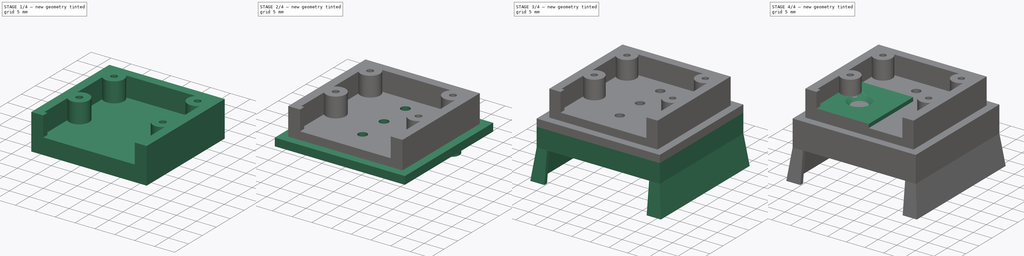
[diagram: build sequence overview — one tinted view per stage of 4, left to right]
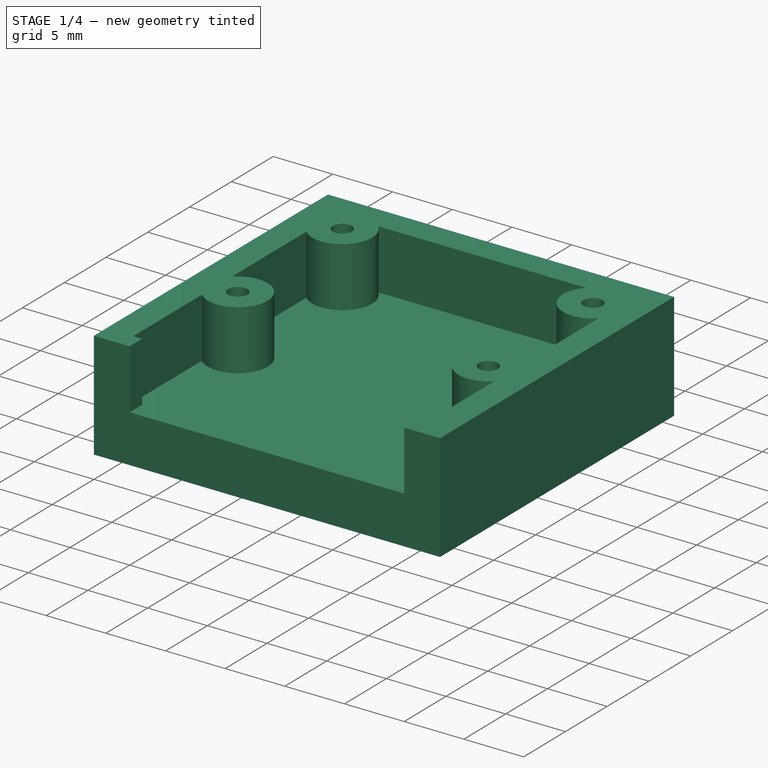
[diagram: stage 1 of 4 — iso view after this stage's code; geometry added in this stage tinted green]
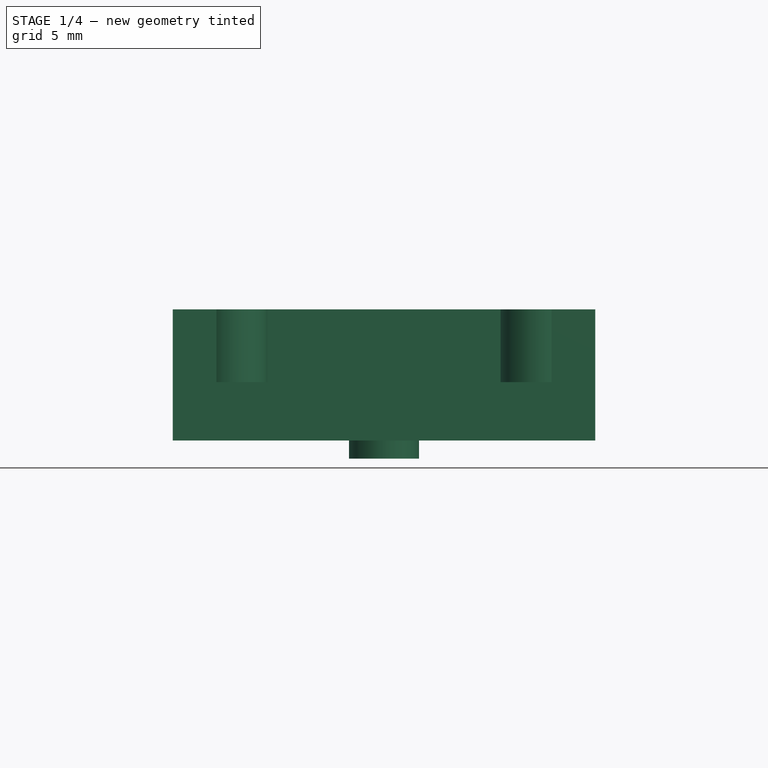
[diagram: stage 1 of 4 — front view after this stage's code; geometry added in this stage tinted green]
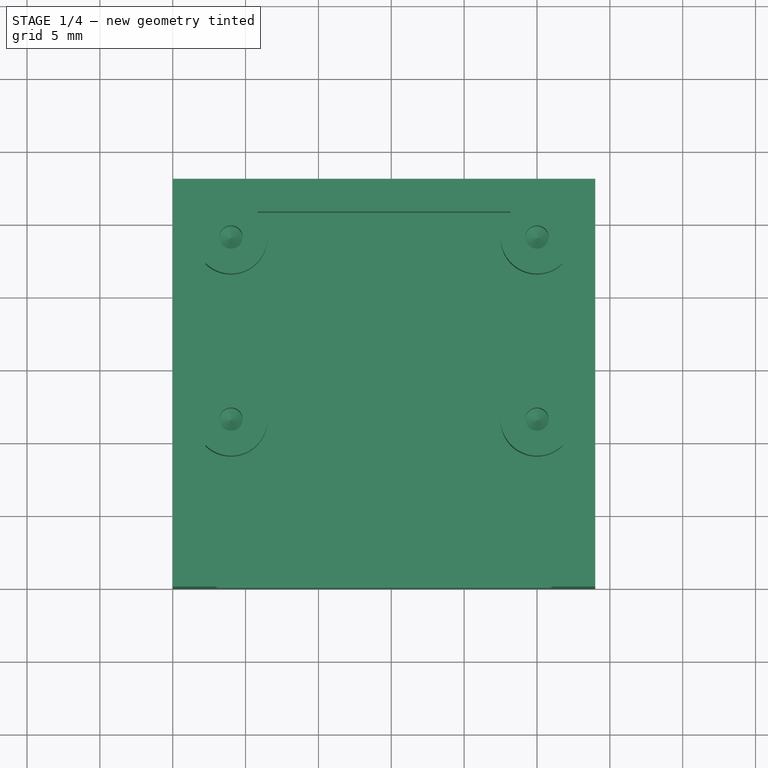
[diagram: stage 1 of 4 — top view after this stage's code; geometry added in this stage tinted green]
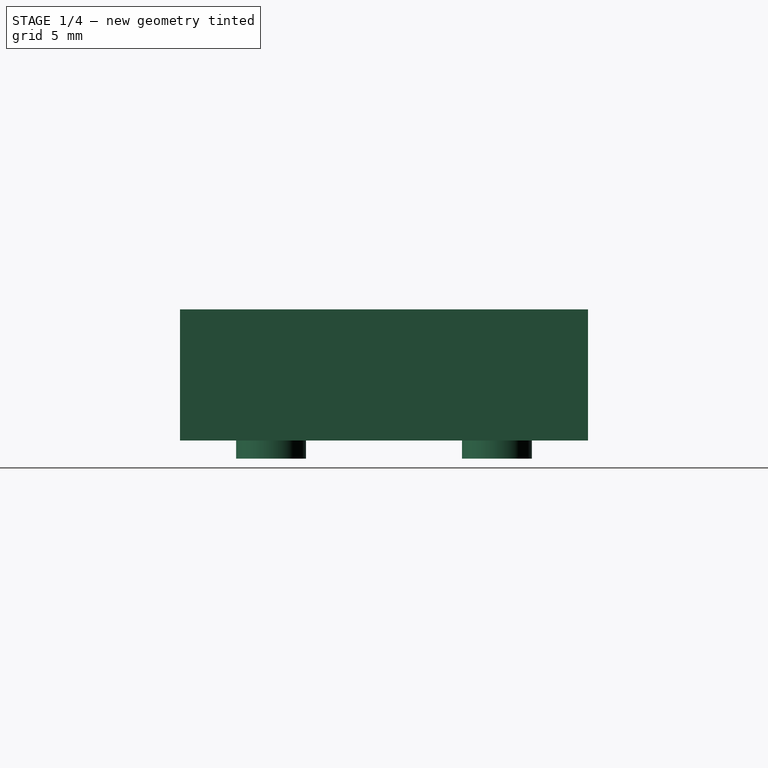
[diagram: stage 1 of 4 — right view after this stage's code; geometry added in this stage tinted green]
FCSTD DOCUMENT  (FreeCAD 1.0R39319 (Git))
Label: Raspi-Cam-holder
License: All rights reserved
LicenseURL: http://en.wikipedia.org/wiki/All_rights_reserved
objects: Sketcher::SketchObject×15, PartDesign::Pad×8, PartDesign::Hole×4, PartDesign::Body×3, PartDesign::AdditiveLoft×1, PartDesign::Chamfer×1
note: 75 computed .brp shape members not serialized (recipe doc carries the construction recipe); baked Part::Feature solids carry a one-line shape summary decoded from their .brp

FEATURE [Sketcher::SketchObject] Sketch
  ArcFitTolerance = 0
  AttachmentSupport = -> [XY_Plane]
  FullyConstrained = false
  MakeInternals = false
  MapMode = 5
  sketch-geometry (8):
    g0: LineSegment StartX=0 StartY=0 StartZ=0 EndX=29 EndY=0 EndZ=0
    g1: LineSegment StartX=29 StartY=0 StartZ=0 EndX=29 EndY=28 EndZ=0
    g2: LineSegment StartX=29 StartY=28 StartZ=0 EndX=0 EndY=28 EndZ=0
    g3: LineSegment StartX=0 StartY=28 StartZ=0 EndX=0 EndY=0 EndZ=0
    g4: LineSegment [constr] StartX=1.9239 StartY=1.73272 StartZ=0 EndX=27.4177 EndY=1.73272 EndZ=0
    g5: LineSegment [constr] StartX=27.4177 StartY=1.73272 StartZ=0 EndX=27.4177 EndY=26.1643 EndZ=0
    g6: LineSegment [constr] StartX=27.4177 StartY=26.1643 StartZ=0 EndX=1.9239 EndY=26.1643 EndZ=0
    g7: LineSegment [constr] StartX=1.9239 StartY=26.1643 StartZ=0 EndX=1.9239 EndY=1.73272 EndZ=0
  constraints (19):
    c: Coincident(g0,g1)
    c: Coincident(g1,g2)
    c: Coincident(g2,g3)
    c: Coincident(g3,g0)
    c: Horizontal(g0)
    c: Horizontal(g2)
    c: Vertical(g1)
    c: Vertical(g3)
    c: Coincident(g0,g-1)
    c: Distance(g2) = 29  'w'
    c: Distance(g1) = 28  'h'
    c: Coincident(g4,g5)
    c: Coincident(g5,g6)
    c: Coincident(g6,g7)
    c: Coincident(g7,g4)
    c: Horizontal(g4)
    c: Horizontal(g6)
    c: Vertical(g5)
    c: Vertical(g7)
FEATURE [PartDesign::Pad] Pad
  Direction = (0,0,1)
  Length = 4
  Length2 = 100
  Profile = -> Sketch
  Suppressed = false
  Type = 0
FEATURE [Sketcher::SketchObject] Sketch001
  ArcFitTolerance = 0
  AttachmentSupport = -> [Pad]
  ExternalGeometry = -> [Pad]
  FullyConstrained = true
  MakeInternals = false
  MapMode = 5
  Placement = pos=(0,0,4) rot=(0,0,1;0rad)
  expr: Constraints[46] = 2 + 2
  sketch-geometry (25):
    g0: LineSegment StartX=0 StartY=28 StartZ=0 EndX=29 EndY=28 EndZ=0
    g1: LineSegment StartX=29 StartY=28 StartZ=0 EndX=29 EndY=0 EndZ=0
    g2: LineSegment StartX=0 StartY=0 StartZ=0 EndX=0 EndY=28 EndZ=0
    g3: ArcOfCircle CenterX=4 CenterY=24 CenterZ=0 NormalX=0 NormalY=0 NormalZ=1 AngleXU=0 Radius=2.5 StartAngle=3.93699 EndAngle=7.05858
    g4: ArcOfCircle CenterX=25 CenterY=24 CenterZ=0 NormalX=0 NormalY=0 NormalZ=1 AngleXU=0 Radius=2.5 StartAngle=2.3662 EndAngle=5.48779
    g5: ArcOfCircle CenterX=25 CenterY=11.5 CenterZ=0 NormalX=0 NormalY=0 NormalZ=1 AngleXU=0 Radius=2.5 StartAngle=0.795399 EndAngle=5.48779
    g6: ArcOfCircle CenterX=4 CenterY=11.5 CenterZ=0 NormalX=0 NormalY=0 NormalZ=1 AngleXU=0 Radius=2.5 StartAngle=3.93699 EndAngle=8.62938
    g7: LineSegment StartX=2.25 StartY=13.2854 StartZ=0 EndX=2.25 EndY=22.2146 EndZ=0
    g8: LineSegment StartX=5.78536 StartY=25.75 StartZ=0 EndX=23.2146 EndY=25.75 EndZ=0
    g9: LineSegment StartX=26.75 StartY=13.2854 StartZ=0 EndX=26.75 EndY=22.2146 EndZ=0
    g10: LineSegment StartX=26.75 StartY=9.71464 StartZ=0 EndX=26.75 EndY=1.5 EndZ=0
    g11: LineSegment StartX=29 StartY=0 StartZ=0 EndX=26 EndY=0 EndZ=0
    g12: LineSegment StartX=26.75 StartY=1.5 StartZ=0 EndX=26 EndY=1.5 EndZ=0
    g13: LineSegment StartX=26 StartY=1.5 StartZ=0 EndX=26 EndY=0 EndZ=0
    g14: LineSegment StartX=2.25 StartY=9.71464 StartZ=0 EndX=2.25 EndY=1.5 EndZ=0
    g15: LineSegment StartX=2.25 StartY=1.5 StartZ=0 EndX=3 EndY=1.5 EndZ=0
    g16: LineSegment StartX=0 StartY=0 StartZ=0 EndX=3 EndY=0 EndZ=0
    g17: LineSegment StartX=3 StartY=0 StartZ=0 EndX=3 EndY=1.5 EndZ=0
    g18: LineSegment [constr] StartX=26 StartY=1.5 StartZ=0 EndX=3 EndY=1.5 EndZ=0
    g19: LineSegment [constr] StartX=2.25 StartY=9.71464 StartZ=0 EndX=2.25 EndY=13.2854 EndZ=0
    g20: LineSegment [constr] StartX=26.75 StartY=9.71464 StartZ=0 EndX=26.75 EndY=13.2854 EndZ=0
    g21: LineSegment [constr] StartX=25 StartY=11.5 StartZ=0 EndX=4 EndY=11.5 EndZ=0
    g22: LineSegment [constr] StartX=25 StartY=11.5 StartZ=0 EndX=25 EndY=24 EndZ=0
    g23: LineSegment [constr] StartX=25 StartY=24 StartZ=0 EndX=4 EndY=24 EndZ=0
    g24: LineSegment [constr] StartX=4 StartY=11.5 StartZ=0 EndX=4 EndY=24 EndZ=0
  constraints (68):
    c: Coincident(g0,g-5)
    c: Coincident(g0,g-4)
    c: Coincident(g1,g0)
    c: Coincident(g1,g-6)
    c: Coincident(g2,g0)
    c: Coincident(g7,g6)
    c: Coincident(g7,g3)
    c: Vertical(g7)
    c: Coincident(g8,g3)
    c: Coincident(g8,g4)
    c: Horizontal(g8)
    c: Coincident(g9,g5)
    c: Coincident(g9,g4)
    c: Vertical(g9)
    c: Coincident(g10,g5)
    c: Vertical(g10)
    c: PointOnObject(g11,g-6)
    c: Coincident(g12,g10)
    c: Horizontal(g12)
    c: Coincident(g13,g12)
    c: Coincident(g13,g11)
    c: Vertical(g13)
    c: Coincident(g14,g6)
    c: Vertical(g14)
    c: Coincident(g15,g14)
    c: Horizontal(g15)
    c: Coincident(g16,g2)
    c: PointOnObject(g16,g-6)
    c: Coincident(g17,g16)
    c: Coincident(g17,g15)
    c: Vertical(g17)
    c: Distance(g4,g0) = 2.25  'ws'
    c: Distance(g5,g1) = 2.25
    c: Coincident(g18,g12)
    c: Coincident(g18,g15)
    c: Horizontal(g18)
    c: Distance(g2,g18) = 1.5
    c: Coincident(g19,g6)
    c: Coincident(g19,g6)
    c: Vertical(g19)
    c: Coincident(g20,g5)
    c: Coincident(g20,g5)
    c: Vertical(g20)
    c: Coincident(g21,g5)
    c: Coincident(g21,g6)
    c: Horizontal(g21)
    c: Distance(g5,g1) = 4
    c: Coincident(g22,g5)
    c: Coincident(g22,g4)
    c: Vertical(g22)
    c: Coincident(g23,g4)
    c: Coincident(g23,g3)
    c: Horizontal(g23)
    c: Coincident(g24,g6)
    c: Coincident(g24,g3)
    c: Vertical(g24)
    c: Distance(g6,g2) = 2.25
    c: Coincident(g2,g-1)
    c: Distance(g6,g2) = 4
    c: Equal(g4,g5)
    c: Equal(g5,g6)
    c: Equal(g6,g3)
    c: Distance(g3,g0) = 4
    c: Radius(g5) = 2.5
    c: Distance(g24) = 12.5
    c: Equal(g11,g16)
    c: Distance(g11) = 3
    c: Coincident(g11,g1)
FEATURE [PartDesign::Pad] Pad001
  BaseFeature = -> Pad
  Direction = (0,0,1)
  Length = 5
  Length2 = 100
  Profile = -> Sketch001
  Suppressed = false
  Type = 0
FEATURE [Sketcher::SketchObject] Sketch002
  ArcFitTolerance = 0
  AttachmentSupport = -> [Pad001]
  ExternalGeometry = -> [Pad001]
  FullyConstrained = false
  MakeInternals = false
  MapMode = 5
  Placement = pos=(0,0,9) rot=(0,0,1;0rad)
  sketch-geometry (4):
    g0: Circle CenterX=25 CenterY=24 CenterZ=0 NormalX=0 NormalY=0 NormalZ=1 AngleXU=0 Radius=0.890291
    g1: Circle CenterX=25 CenterY=11.5 CenterZ=0 NormalX=0 NormalY=0 NormalZ=1 AngleXU=0 Radius=0.96993
    g2: Circle CenterX=4 CenterY=11.5 CenterZ=0 NormalX=0 NormalY=0 NormalZ=1 AngleXU=0 Radius=1.01386
    g3: Circle CenterX=4 CenterY=24 CenterZ=0 NormalX=0 NormalY=0 NormalZ=1 AngleXU=0 Radius=0.926624
  constraints (4):
    c: Coincident(g0,g-3)
    c: Coincident(g1,g-4)
    c: Coincident(g2,g-5)
    c: Coincident(g3,g-6)
FEATURE [PartDesign::Hole] Hole
  BaseFeature = -> Pad001
  CustomThreadClearance = 0
  Depth = 4
  DepthType = 0
  Diameter = 1.6
  DrillForDepth = false
  DrillPoint = 1
  DrillPointAngle = 118
  HoleCutCountersinkAngle = 90
  HoleCutCustomValues = false
  HoleCutDepth = 0
  HoleCutDiameter = 6.1
  HoleCutType = 0
  ModelThread = false
  Profile = -> Sketch002
  Suppressed = false
  Tapered = false
  TaperedAngle = 90
  ThreadClass = 0
  ThreadDepth = 4
  ThreadDepthType = 0
  ThreadDirection = 0
  ThreadFit = 0
  ThreadSize = 6
  ThreadType = 1
  Threaded = true
  UseCustomThreadClearance = false
FEATURE [Sketcher::SketchObject] Sketch003
  ArcFitTolerance = 0
  AttachmentSupport = -> [Hole]
  ExternalGeometry = -> [Hole]
  FullyConstrained = false
  MakeInternals = false
  MapMode = 5
  Placement = pos=(0,0,0) rot=(1,0,0;3.14159rad)
  expr: Constraints[12] = 15.5 / 2
  expr: Constraints[13] = 15.5 / 2
  sketch-geometry (6):
    g0: LineSegment [constr] StartX=0 StartY=0 StartZ=0 EndX=29 EndY=-28 EndZ=0
    g1: LineSegment [constr] StartX=29 StartY=0 StartZ=0 EndX=0 EndY=-28 EndZ=0
    g2: LineSegment [constr] StartX=14.5 StartY=-28.0755 StartZ=0 EndX=14.5 EndY=0 EndZ=0
    g3: Circle CenterX=14.5 CenterY=-6.25 CenterZ=0 NormalX=0 NormalY=0 NormalZ=1 AngleXU=0 Radius=2.4
    g4: Circle CenterX=14.5 CenterY=-21.75 CenterZ=0 NormalX=0 NormalY=0 NormalZ=1 AngleXU=0 Radius=2.4
    g5: GeomPoint [constr] X=14.5 Y=-14 Z=0
  constraints (14):
    c: Coincident(g0,g-1)
    c: Coincident(g0,g-3)
    c: Coincident(g1,g-3)
    c: Coincident(g1,g-4)
    c: PointOnObject(g2,g-1)
    c: Vertical(g2)
    c: PointOnObject(g3,g2)
    c: PointOnObject(g4,g2)
    c: Diameter(g3) = 4.8
    c: Equal(g4,g3)
    c: Symmetric(g0,g0,g5)
    c: PointOnObject(g5,g2)
    c: Distance(g5,g3) = 7.75
    c: Distance(g4,g5) = 7.75
FEATURE [PartDesign::Pad] Pad002
  BaseFeature = -> Hole
  Direction = (0,0,-1)
  Length = 1.25
  Length2 = 100
  Profile = -> Sketch003
  ReferenceAxis = -> Sketch003 [N_Axis]
  Suppressed = false
  Type = 0
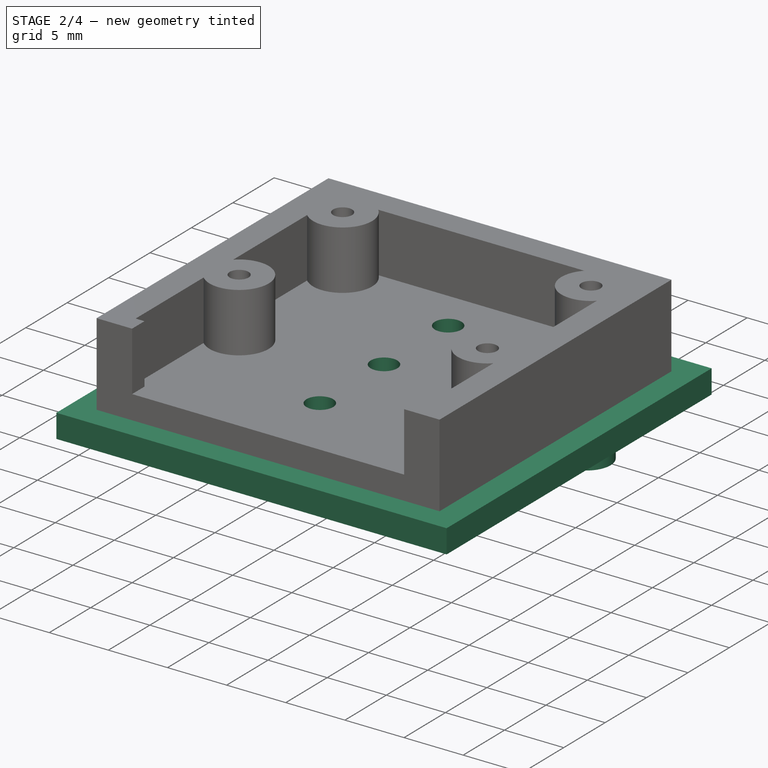
[diagram: stage 2 of 4 — iso view after this stage's code; geometry added in this stage tinted green]
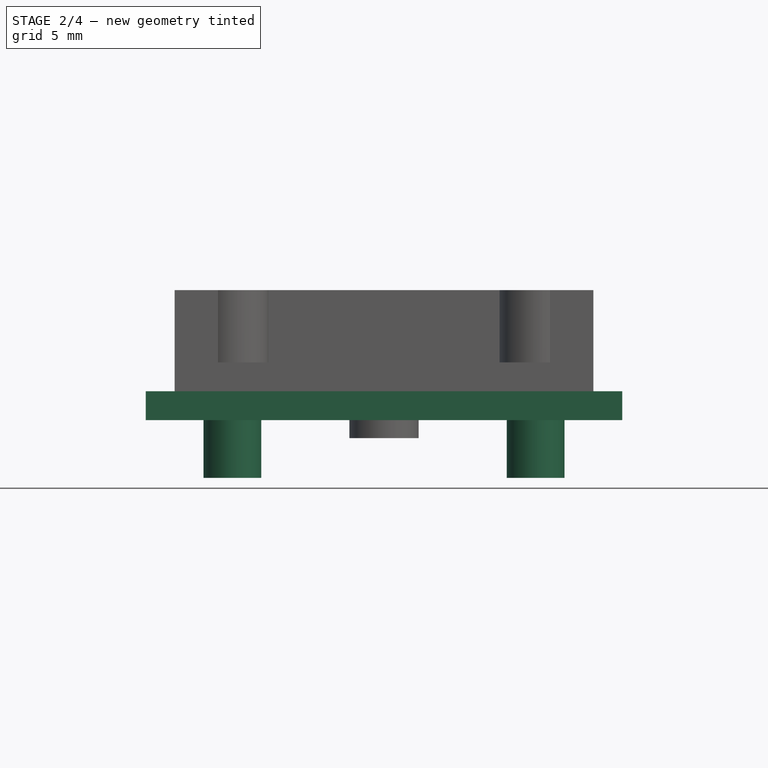
[diagram: stage 2 of 4 — front view after this stage's code; geometry added in this stage tinted green]
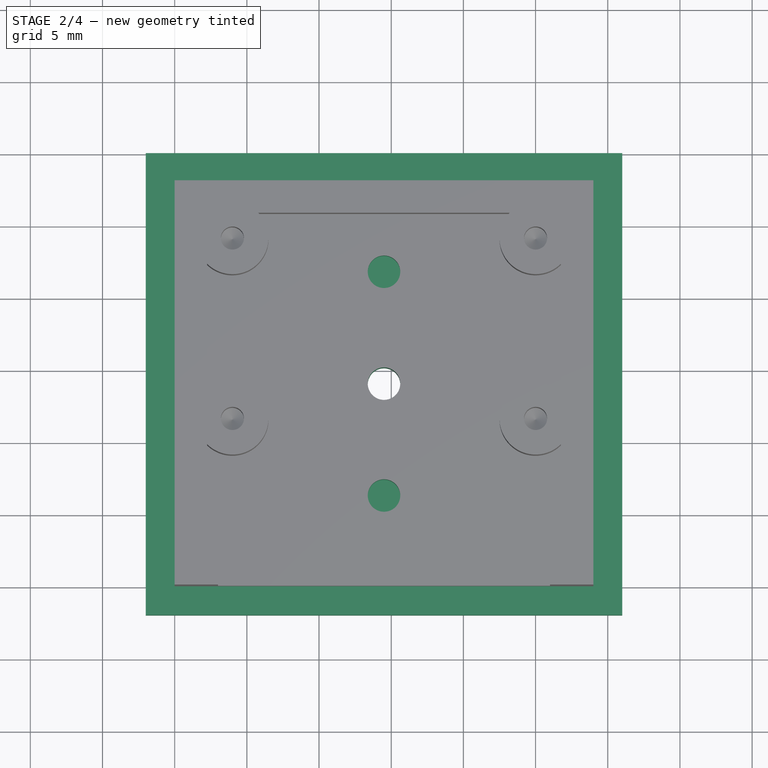
[diagram: stage 2 of 4 — top view after this stage's code; geometry added in this stage tinted green]
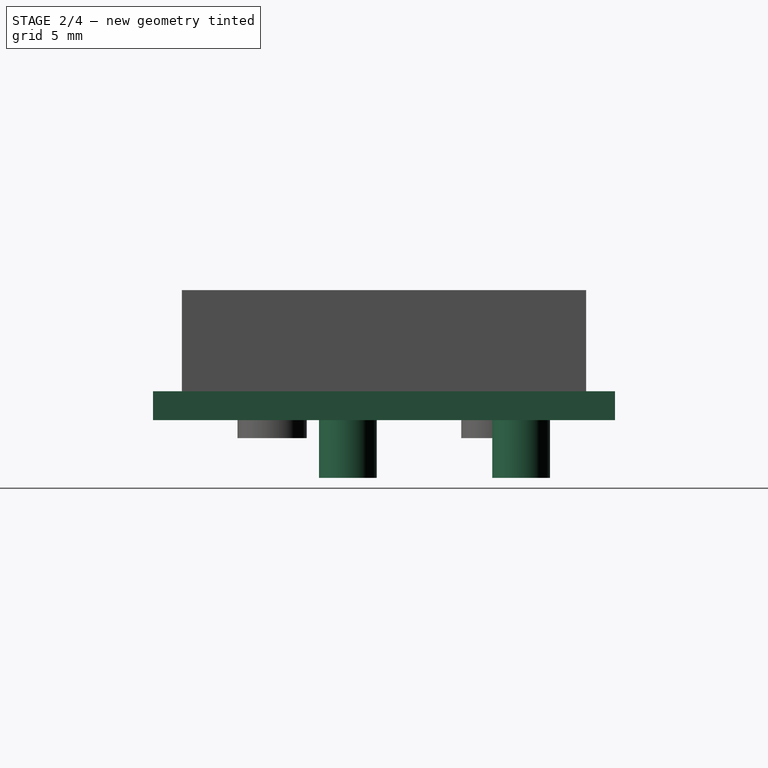
[diagram: stage 2 of 4 — right view after this stage's code; geometry added in this stage tinted green]
FEATURE [PartDesign::Body] Body001  label="Counter_ding"
  AllowCompound = false
  Group = -> [Sketch005,Pad003,Sketch006,Sketch007,Hole002,Sketch008,Pad004]
  Origin = -> Origin001
  Placement = pos=(23,5.5,-4) rot=(0,1,0;3.14159rad)
  Tip = -> Pad004
FEATURE [Sketcher::SketchObject] Sketch009
  ArcFitTolerance = 0
  AttachmentSupport = -> [XY_Plane002]
  FullyConstrained = true
  MakeInternals = false
  MapMode = 5
  sketch-geometry (10):
    g0: LineSegment StartX=-2 StartY=-2 StartZ=0 EndX=31 EndY=-2 EndZ=0
    g1: LineSegment StartX=31 StartY=-2 StartZ=0 EndX=31 EndY=30 EndZ=0
    g2: LineSegment StartX=31 StartY=30 StartZ=0 EndX=-2 EndY=30 EndZ=0
    g3: LineSegment StartX=-2 StartY=30 StartZ=0 EndX=-2 EndY=-2 EndZ=0
    g4: LineSegment [constr] StartX=0 StartY=28 StartZ=0 EndX=29 EndY=28 EndZ=0
    g5: LineSegment [constr] StartX=29 StartY=28 StartZ=0 EndX=29 EndY=0 EndZ=0
    g6: LineSegment [constr] StartX=29 StartY=0 StartZ=0 EndX=0 EndY=0 EndZ=0
    g7: LineSegment [constr] StartX=0 StartY=0 StartZ=0 EndX=0 EndY=28 EndZ=0
    g8: Circle CenterX=14.5 CenterY=11.5 CenterZ=0 NormalX=0 NormalY=0 NormalZ=1 AngleXU=0 Radius=3.75
    g9: LineSegment [constr] StartX=29 StartY=11.5 StartZ=0 EndX=0 EndY=11.5 EndZ=0
  constraints (30):
    c: Coincident(g0,g1)
    c: Coincident(g1,g2)
    c: Coincident(g2,g3)
    c: Coincident(g3,g0)
    c: Horizontal(g0)
    c: Horizontal(g2)
    c: Vertical(g1)
    c: Vertical(g3)
    c: Coincident(g4,g5)
    c: Coincident(g5,g6)
    c: Coincident(g6,g7)
    c: Coincident(g7,g4)
    c: Horizontal(g4)
    c: Horizontal(g6)
    c: Vertical(g5)
    c: Vertical(g7)
    c: PointOnObject(g4,g-2)
    c: PointOnObject(g5,g-1)
    c: Distance(g4) = 29
    c: Distance(g5) = 28
    c: DistanceY(g4,g2) = 2
    c: DistanceY(g0,g-1) = 2
    c: DistanceX(g2,g4) = 2
    c: DistanceX(g5,g0) = 2
    c: PointOnObject(g9,g5)
    c: PointOnObject(g9,g7)
    c: Horizontal(g9)
    c: Distance(g-1,g9) = 11.5
    c: Symmetric(g9,g9,g8)
    c: Radius(g8) = 3.75
FEATURE [PartDesign::Pad] Pad005
  Direction = (0,0,1)
  Length = 2
  Length2 = 100
  Profile = -> Sketch009
  Suppressed = false
  Type = 0
FEATURE [Sketcher::SketchObject] Sketch010
  ArcFitTolerance = 0
  AttachmentSupport = -> [Pad005]
  ExternalGeometry = -> [Pad005]
  FullyConstrained = true
  MakeInternals = false
  MapMode = 5
  Placement = pos=(0,0,0) rot=(1,0,0;3.14159rad)
  sketch-geometry (6):
    g0: Circle CenterX=25 CenterY=-23.5 CenterZ=0 NormalX=0 NormalY=0 NormalZ=1 AngleXU=0 Radius=2
    g1: Circle CenterX=4 CenterY=-11.5 CenterZ=0 NormalX=0 NormalY=0 NormalZ=1 AngleXU=0 Radius=2
    g2: LineSegment [constr] StartX=25 StartY=-23.5 StartZ=0 EndX=4 EndY=-23.5 EndZ=0
    g3: LineSegment [constr] StartX=4 StartY=-23.5 StartZ=0 EndX=4 EndY=-11.5 EndZ=0
    g4: LineSegment [constr] StartX=4 StartY=-11.5 StartZ=0 EndX=25 EndY=-11.5 EndZ=0
    g5: LineSegment [constr] StartX=25 StartY=-11.5 StartZ=0 EndX=25 EndY=-23.5 EndZ=0
  constraints (15):
    c: Radius(g1) = 2
    c: Equal(g1,g0)
    c: Coincident(g2,g3)
    c: Coincident(g3,g4)
    c: Coincident(g4,g5)
    c: Coincident(g5,g2)
    c: Horizontal(g2)
    c: Horizontal(g4)
    c: Vertical(g3)
    c: Vertical(g5)
    c: Coincident(g2,g0)
    c: Coincident(g3,g1)
    c: Distance(g4) = 21
    c: Distance(g5) = 12
    c: Symmetric(g1,g4,g-3)
FEATURE [PartDesign::Pad] Pad006
  BaseFeature = -> Pad005
  Direction = (0,0,-1)
  Length = 4
  Length2 = 100
  Profile = -> Sketch010
  Suppressed = false
  Type = 0
FEATURE [PartDesign::Body] Body002  label="Deckel"
  AllowCompound = false
  Group = -> [Sketch009,Pad005,Sketch010,Pad006,Sketch011,Hole003,Sketch012,Pad007,Sketch013,Sketch018,AdditiveLoft,Chamfer]
  Origin = -> Origin002
  Placement = pos=(0,0,32) rot=(0,1,0;0rad)
  Tip = -> Chamfer
FEATURE [Sketcher::SketchObject] Sketch019
  ArcFitTolerance = 1e-06
  AttachmentSupport = -> [Pad002]
  ExternalGeometry = -> [Pad002]
  FullyConstrained = false
  MakeInternals = false
  MapMode = 5
  Placement = pos=(0,0,-1.25) rot=(1,0,0;3.14159rad)
  sketch-geometry (5):
    g0: LineSegment [constr] StartX=0 StartY=0 StartZ=0 EndX=29 EndY=-28 EndZ=0
    g1: LineSegment [constr] StartX=0 StartY=-28 StartZ=0 EndX=29 EndY=0 EndZ=0
    g2: Circle CenterX=14.5 CenterY=-14 CenterZ=0 NormalX=0 NormalY=0 NormalZ=1 AngleXU=0 Radius=1.4285
    g3: Circle CenterX=14.5 CenterY=-6.25 CenterZ=0 NormalX=0 NormalY=0 NormalZ=1 AngleXU=0 Radius=0.9327
    g4: Circle CenterX=14.5 CenterY=-21.75 CenterZ=0 NormalX=0 NormalY=0 NormalZ=1 AngleXU=0 Radius=0.994264
  constraints (7):
    c: Coincident(g0,g-1)
    c: Coincident(g0,g-5)
    c: Coincident(g1,g-6)
    c: Coincident(g1,g-5)
    c: Symmetric(g0,g0,g2)
    c: Coincident(g3,g-3)
    c: Coincident(g4,g-4)
FEATURE [PartDesign::Hole] Hole004
  BaseFeature = -> Pad002
  CustomThreadClearance = 0
  Depth = 84.0199
  DepthType = 1
  Diameter = 2.25
  DrillForDepth = false
  DrillPoint = 1
  DrillPointAngle = 118
  HoleCutCountersinkAngle = 90
  HoleCutCustomValues = false
  HoleCutDepth = 0
  HoleCutDiameter = 6.1
  HoleCutType = 0
  ModelThread = false
  Profile = -> Sketch019
  Refine = true
  Suppressed = false
  Tapered = false
  TaperedAngle = 90
  ThreadClass = 0
  ThreadDepth = 84.0199
  ThreadDepthType = 0
  ThreadDirection = 0
  ThreadFit = 0
  ThreadSize = 0
  ThreadType = 0
  Threaded = false
  UseCustomThreadClearance = false
FEATURE [PartDesign::Body] Body  label="Main_base"
  AllowCompound = false
  Group = -> [Sketch,Pad,Sketch001,Pad001,Sketch002,Hole,Sketch003,Pad002,Sketch019,Hole004]
  Origin = -> Origin
  Tip = -> Hole004
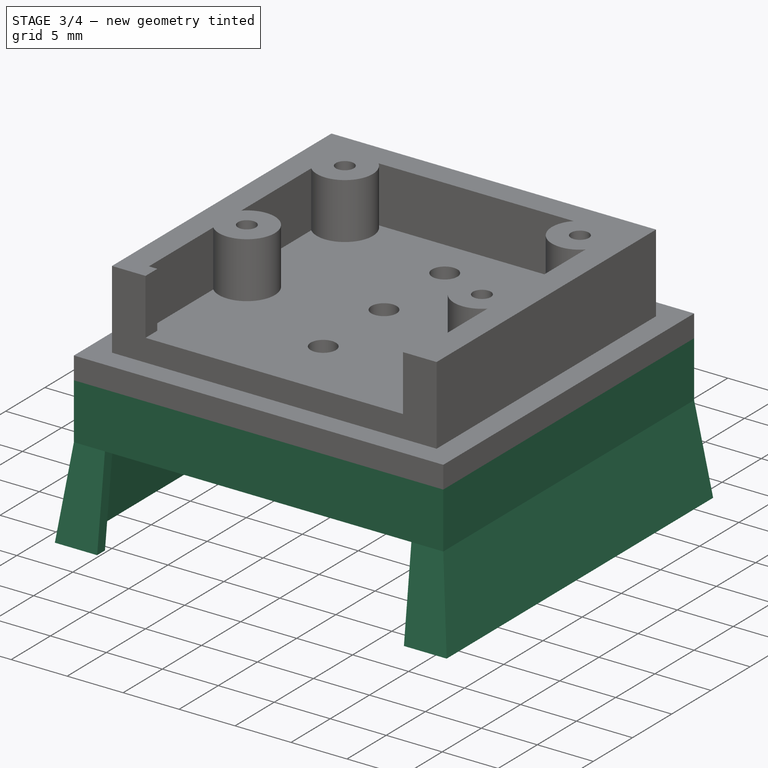
[diagram: stage 3 of 4 — iso view after this stage's code; geometry added in this stage tinted green]
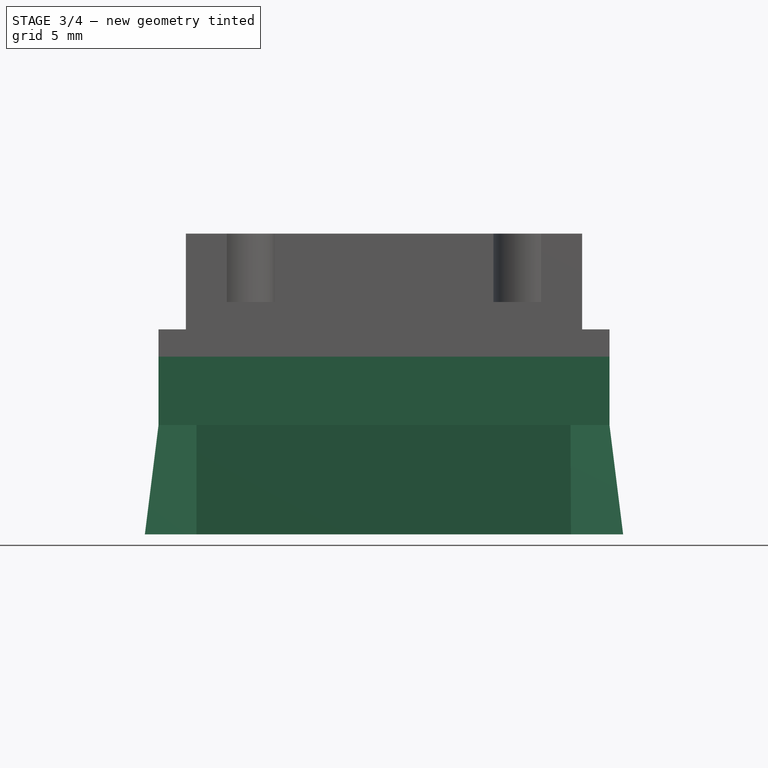
[diagram: stage 3 of 4 — front view after this stage's code; geometry added in this stage tinted green]
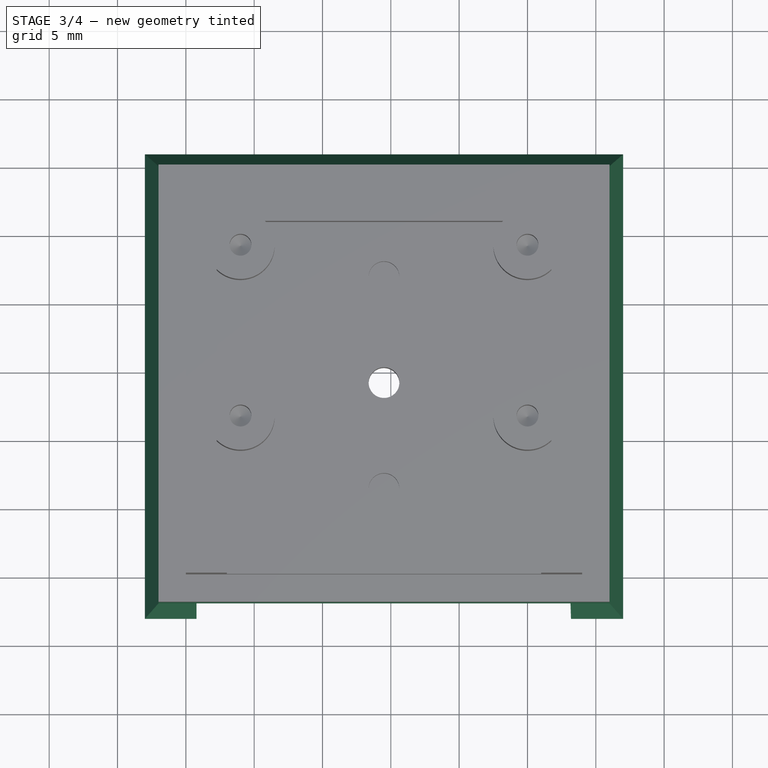
[diagram: stage 3 of 4 — top view after this stage's code; geometry added in this stage tinted green]
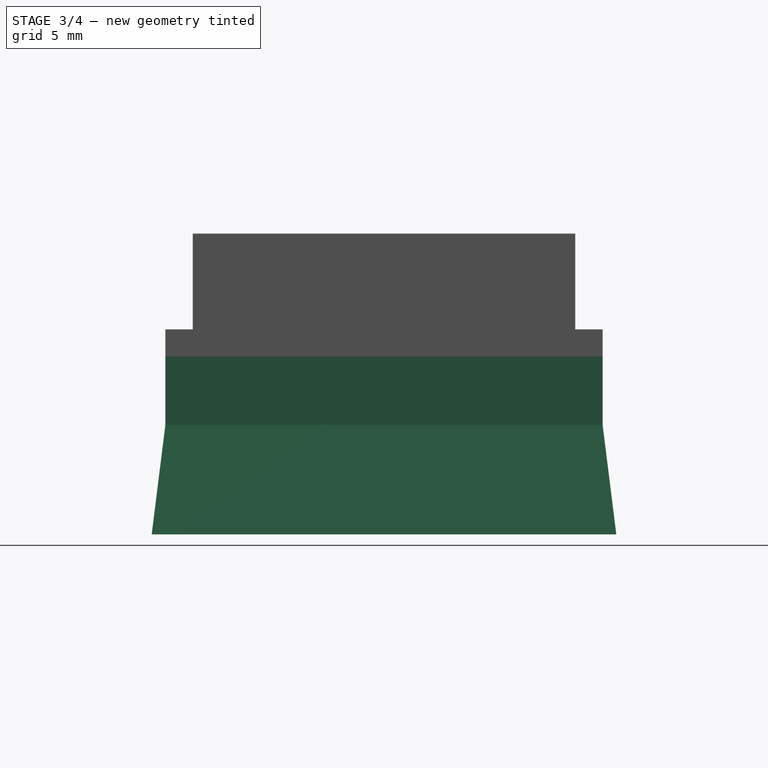
[diagram: stage 3 of 4 — right view after this stage's code; geometry added in this stage tinted green]
FEATURE [Sketcher::SketchObject] Sketch011
  ArcFitTolerance = 0
  AttachmentSupport = -> [Pad006]
  ExternalGeometry = -> [Pad006]
  FullyConstrained = false
  MakeInternals = false
  MapMode = 5
  Placement = pos=(0,0,-4) rot=(1,0,0;3.14159rad)
  sketch-geometry (3):
    g0: GeomPoint [constr] X=25 Y=-23.5 Z=0
    g1: Circle CenterX=25 CenterY=-23.5 CenterZ=0 NormalX=0 NormalY=0 NormalZ=1 AngleXU=0 Radius=0.79125
    g2: Circle CenterX=4 CenterY=-11.5 CenterZ=0 NormalX=0 NormalY=0 NormalZ=1 AngleXU=0 Radius=1.26493
  constraints (3):
    c: Coincident(g0,g-3)
    c: Coincident(g1,g0)
    c: Coincident(g2,g-4)
FEATURE [PartDesign::Hole] Hole003
  BaseFeature = -> Pad006
  CustomThreadClearance = 0
  Depth = 25
  DepthType = 0
  Diameter = 2.5
  DrillForDepth = false
  DrillPoint = 1
  DrillPointAngle = 118
  HoleCutCountersinkAngle = 93
  HoleCutCustomValues = false
  HoleCutDepth = 0
  HoleCutDiameter = 5.9
  HoleCutType = 0
  ModelThread = false
  Profile = -> Sketch011
  Suppressed = false
  Tapered = false
  TaperedAngle = 90
  ThreadClass = 0
  ThreadDepth = 23.5
  ThreadDepthType = 0
  ThreadDirection = 0
  ThreadFit = 0
  ThreadSize = 0
  ThreadType = 0
  Threaded = false
  UseCustomThreadClearance = false
FEATURE [Sketcher::SketchObject] Sketch012
  ArcFitTolerance = 0
  AttachmentSupport = -> [Hole003]
  ExternalGeometry = -> [Hole003]
  FullyConstrained = true
  MakeInternals = false
  MapMode = 5
  Placement = pos=(0,0,0) rot=(1,0,0;3.14159rad)
  sketch-geometry (8):
    g0: LineSegment StartX=-2 StartY=2 StartZ=0 EndX=31 EndY=2 EndZ=0
    g1: LineSegment StartX=31 StartY=2 StartZ=0 EndX=31 EndY=-30 EndZ=0
    g2: LineSegment StartX=31 StartY=-30 StartZ=0 EndX=-2 EndY=-30 EndZ=0
    g3: LineSegment StartX=-2 StartY=-30 StartZ=0 EndX=-2 EndY=2 EndZ=0
    g4: LineSegment StartX=29 StartY=-28 StartZ=0 EndX=0 EndY=-28 EndZ=0
    g5: LineSegment StartX=0 StartY=-28 StartZ=0 EndX=0 EndY=0 EndZ=0
    g6: LineSegment StartX=0 StartY=0 StartZ=0 EndX=29 EndY=0 EndZ=0
    g7: LineSegment StartX=29 StartY=0 StartZ=0 EndX=29 EndY=-28 EndZ=0
  constraints (21):
    c: Coincident(g0,g1)
    c: Coincident(g1,g2)
    c: Coincident(g2,g3)
    c: Coincident(g3,g0)
    c: Horizontal(g0)
    c: Horizontal(g2)
    c: Vertical(g1)
    c: Vertical(g3)
    c: Coincident(g0,g-3)
    c: Coincident(g1,g-4)
    c: Coincident(g4,g5)
    c: Coincident(g5,g6)
    c: Coincident(g6,g7)
    c: Coincident(g7,g4)
    c: Horizontal(g4)
    c: Horizontal(g6)
    c: Vertical(g5)
    c: Vertical(g7)
    c: Coincident(g5,g-1)
    c: DistanceY(g1,g4) = 2
    c: DistanceX(g4,g1) = 2
FEATURE [PartDesign::Pad] Pad007
  BaseFeature = -> Hole003
  Direction = (0,0,-1)
  Length = 5
  Length2 = 100
  Profile = -> Sketch012
  Suppressed = false
  Type = 0
FEATURE [Sketcher::SketchObject] Sketch013
  ArcFitTolerance = 0
  AttachmentSupport = -> [Pad007]
  ExternalGeometry = -> [Pad007]
  FullyConstrained = false
  MakeInternals = false
  MapMode = 5
  Placement = pos=(0,0,-5) rot=(1,0,0;3.14159rad)
  sketch-geometry (13):
    g0: LineSegment StartX=-2 StartY=2 StartZ=0 EndX=-2 EndY=-30 EndZ=0
    g1: LineSegment StartX=31 StartY=-30 StartZ=0 EndX=31 EndY=2 EndZ=0
    g2: LineSegment StartX=30 StartY=-29 StartZ=0 EndX=30 EndY=1 EndZ=0
    g3: LineSegment StartX=-1 StartY=1 StartZ=0 EndX=-1 EndY=-29 EndZ=0
    g4: LineSegment StartX=30 StartY=-29 StartZ=0 EndX=-1 EndY=-29 EndZ=0
    g5: LineSegment StartX=31 StartY=-30 StartZ=0 EndX=-2 EndY=-30 EndZ=0
    g6: LineSegment StartX=-1 StartY=1 StartZ=0 EndX=0.774787 EndY=1 EndZ=0
    g7: LineSegment StartX=0.774787 StartY=1 StartZ=0 EndX=0.774787 EndY=2 EndZ=0
    g8: LineSegment StartX=0.774787 StartY=2 StartZ=0 EndX=-2 EndY=2 EndZ=0
    g9: LineSegment StartX=30 StartY=1 StartZ=0 EndX=28.1478 EndY=1 EndZ=0
    g10: LineSegment StartX=28.1478 StartY=1 StartZ=0 EndX=28.1478 EndY=2 EndZ=0
    g11: LineSegment StartX=28.1478 StartY=2 StartZ=0 EndX=31 EndY=2 EndZ=0
    g12: LineSegment [constr] StartX=28.1478 StartY=1 StartZ=0 EndX=0.774787 EndY=1 EndZ=0
  constraints (34):
    c: Vertical(g0)
    c: Vertical(g1)
    c: Coincident(g0,g-4)
    c: Vertical(g2)
    c: Vertical(g3)
    c: DistanceX(g2,g1) = 1
    c: DistanceX(g0,g3) = 1
    c: DistanceY(g2,g1) = 1
    c: DistanceY(g0,g3) = 1
    c: Coincident(g4,g2)
    c: Horizontal(g4)
    c: Coincident(g4,g3)
    c: Coincident(g5,g1)
    c: Coincident(g5,g0)
    c: Horizontal(g5)
    c: Coincident(g6,g3)
    c: Coincident(g7,g6)
    c: PointOnObject(g7,g-3)
    c: Vertical(g7)
    c: Coincident(g8,g0)
    c: Horizontal(g8)
    c: Coincident(g9,g2)
    c: Horizontal(g9)
    c: Coincident(g10,g9)
    c: PointOnObject(g10,g-3)
    c: Coincident(g11,g10)
    c: Coincident(g11,g1)
    c: Horizontal(g11)
    c: Vertical(g10)
    c: Coincident(g8,g7)
    c: Horizontal(g6)
    c: Coincident(g12,g9)
    c: Coincident(g12,g6)
    c: Horizontal(g12)
FEATURE [Sketcher::SketchObject] Sketch018
  ArcFitTolerance = 0
  FullyConstrained = false
  MakeInternals = false
  MapMode = 5
  Placement = pos=(0,0,-13) rot=(1,0,0;3.14159rad)
  sketch-geometry (14):
    g0: LineSegment StartX=-3 StartY=3 StartZ=0 EndX=-3 EndY=-31 EndZ=0
    g1: LineSegment StartX=32 StartY=-31 StartZ=0 EndX=32 EndY=3 EndZ=0
    g2: LineSegment StartX=31 StartY=-30 StartZ=0 EndX=31 EndY=2 EndZ=0
    g3: LineSegment StartX=-2 StartY=2 StartZ=0 EndX=-2 EndY=-30 EndZ=0
    g4: LineSegment StartX=31 StartY=-30 StartZ=0 EndX=-2 EndY=-30 EndZ=0
    g5: LineSegment StartX=32 StartY=-31 StartZ=0 EndX=-3 EndY=-31 EndZ=0
    g6: LineSegment StartX=-2 StartY=2 StartZ=0 EndX=0.774787 EndY=2 EndZ=0
    g7: LineSegment StartX=0.774787 StartY=2 StartZ=0 EndX=0.774787 EndY=3 EndZ=0
    g8: LineSegment StartX=0.774787 StartY=3 StartZ=0 EndX=-3 EndY=3 EndZ=0
    g9: LineSegment StartX=31 StartY=2 StartZ=0 EndX=28.183 EndY=2 EndZ=0
    g10: LineSegment StartX=28.183 StartY=2 StartZ=0 EndX=28.183 EndY=3 EndZ=0
    g11: LineSegment StartX=28.183 StartY=3 StartZ=0 EndX=32 EndY=3 EndZ=0
    g12: LineSegment [constr] StartX=28.183 StartY=2 StartZ=0 EndX=0.774787 EndY=2 EndZ=0
    g13: LineSegment [constr] StartX=28.183 StartY=3 StartZ=0 EndX=0.774787 EndY=3 EndZ=0
  constraints (32):
    c: Vertical(g0)
    c: Vertical(g1)
    c: Vertical(g3)
    c: DistanceX(g2,g1) = 1
    c: DistanceX(g0,g3) = 1
    c: DistanceY(g2,g1) = 1
    c: DistanceY(g0,g3) = 1
    c: Coincident(g4,g2)
    c: Horizontal(g4)
    c: Coincident(g4,g3)
    c: Coincident(g5,g1)
    c: Coincident(g5,g0)
    c: Horizontal(g5)
    c: Coincident(g6,g3)
    c: Coincident(g7,g6)
    c: Vertical(g7)
    c: Coincident(g8,g0)
    c: Horizontal(g8)
    c: Coincident(g9,g2)
    c: Horizontal(g9)
    c: Coincident(g10,g9)
    c: Coincident(g11,g10)
    c: Coincident(g11,g1)
    c: Horizontal(g11)
    c: Vertical(g10)
    c: Coincident(g8,g7)
    c: Horizontal(g6)
    c: Coincident(g12,g9)
    c: Coincident(g12,g6)
    c: Coincident(g13,g10)
    c: Coincident(g13,g7)
    c: Horizontal(g13)
FEATURE [PartDesign::AdditiveLoft] AdditiveLoft
  BaseFeature = -> Pad007
  Closed = false
  Profile = -> Sketch013
  Ruled = false
  Sections = -> [Sketch018]
  Suppressed = false
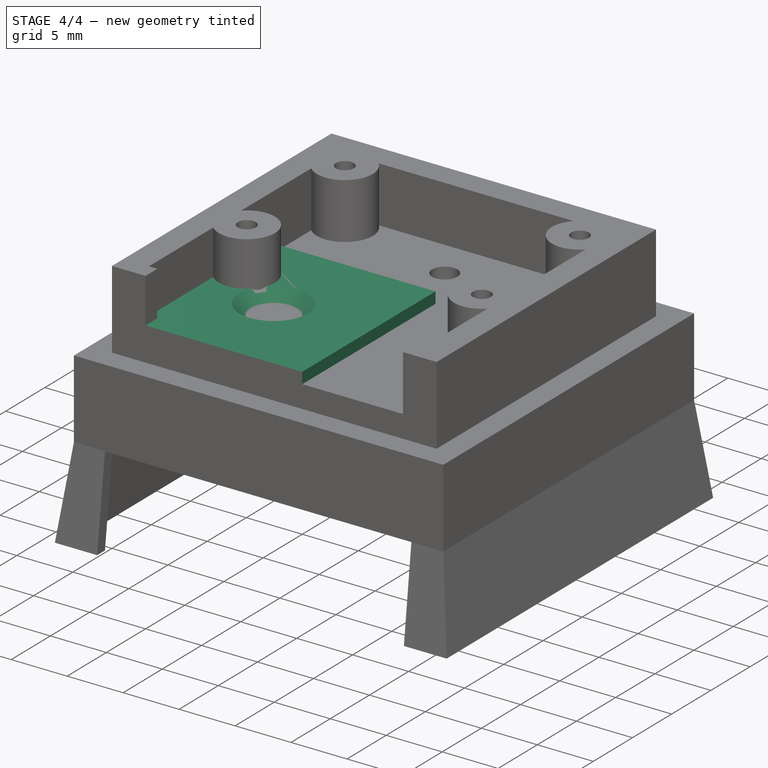
[diagram: stage 4 of 4 — iso view after this stage's code; geometry added in this stage tinted green]
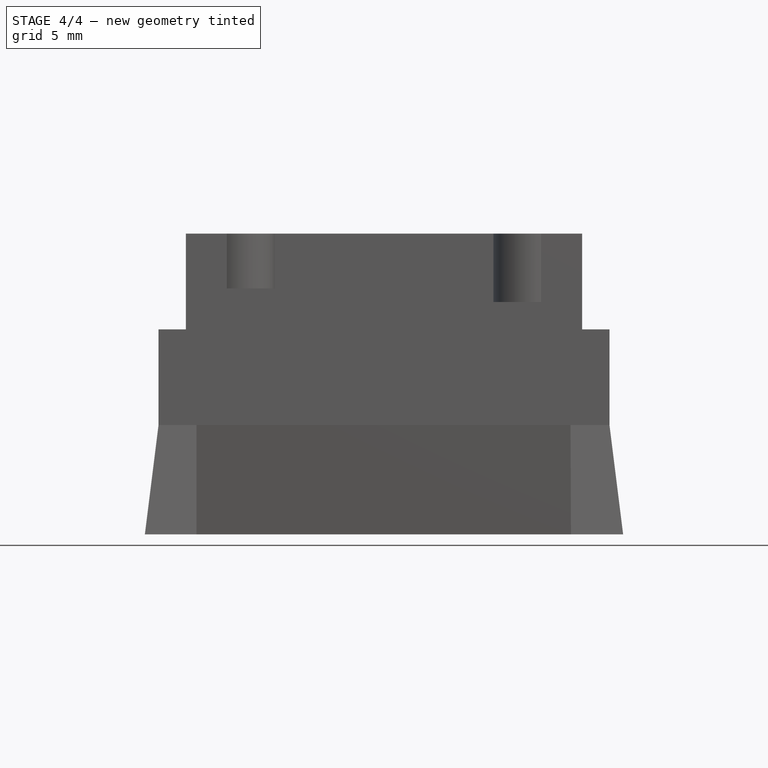
[diagram: stage 4 of 4 — front view after this stage's code; geometry added in this stage tinted green]
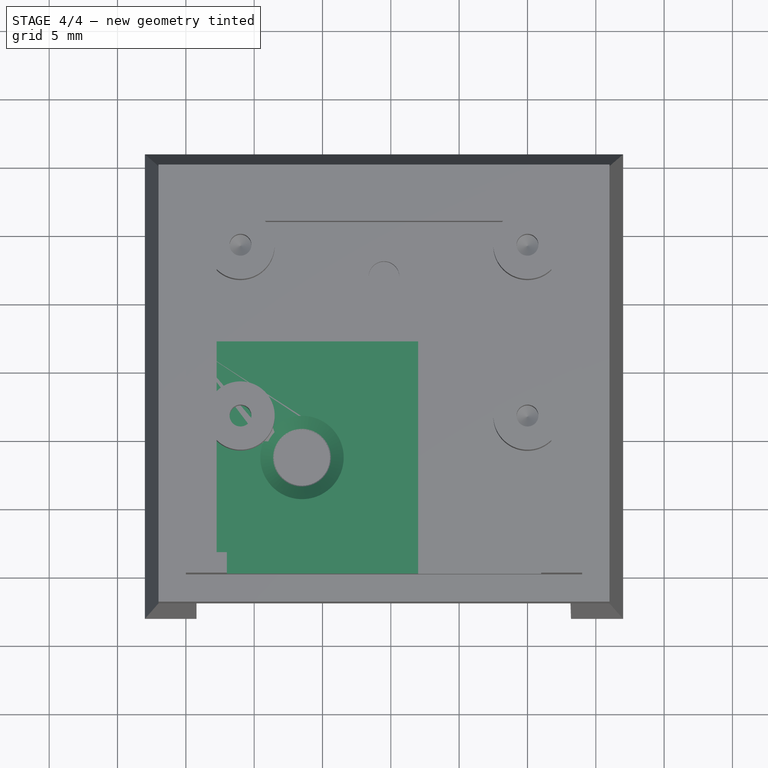
[diagram: stage 4 of 4 — top view after this stage's code; geometry added in this stage tinted green]
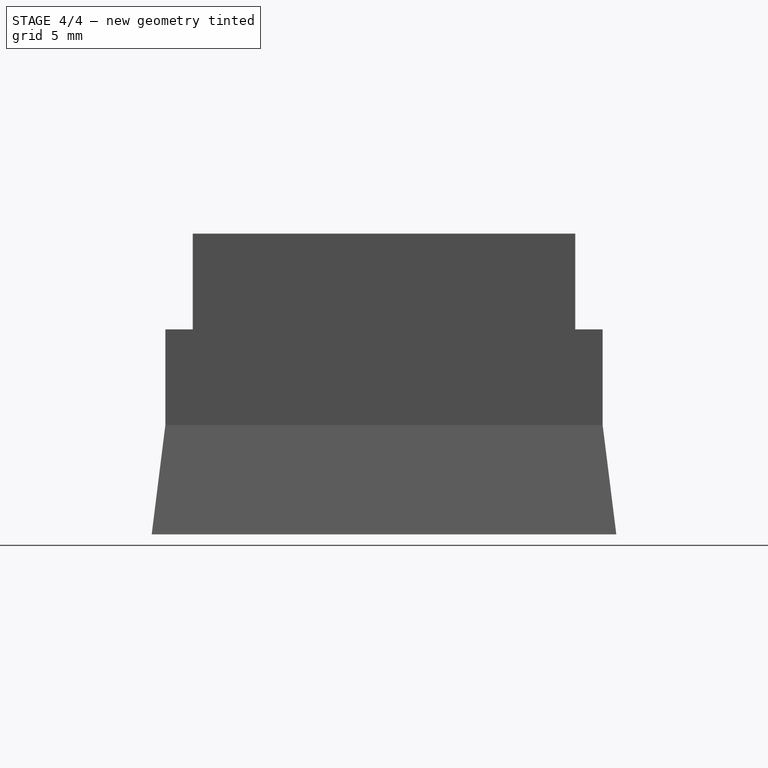
[diagram: stage 4 of 4 — right view after this stage's code; geometry added in this stage tinted green]
FEATURE [Sketcher::SketchObject] Sketch005
  ArcFitTolerance = 0
  AttachmentSupport = -> [XY_Plane001]
  FullyConstrained = true
  MakeInternals = false
  MapMode = 5
  sketch-geometry (4):
    g0: LineSegment StartX=0 StartY=0 StartZ=0 EndX=17 EndY=0 EndZ=0
    g1: LineSegment StartX=17 StartY=0 StartZ=0 EndX=17 EndY=17 EndZ=0
    g2: LineSegment StartX=17 StartY=17 StartZ=0 EndX=0 EndY=17 EndZ=0
    g3: LineSegment StartX=0 StartY=17 StartZ=0 EndX=0 EndY=0 EndZ=0
  constraints (11):
    c: Coincident(g0,g1)
    c: Coincident(g1,g2)
    c: Coincident(g2,g3)
    c: Coincident(g3,g0)
    c: Horizontal(g0)
    c: Horizontal(g2)
    c: Vertical(g1)
    c: Vertical(g3)
    c: Distance(g2) = 17
    c: DistanceY(g3,g3) = 17
    c: Coincident(g0,g-1)
FEATURE [PartDesign::Pad] Pad003
  Direction = (0,0,1)
  Length = 5
  Length2 = 100
  Profile = -> Sketch005
  Suppressed = false
  Type = 0
FEATURE [Sketcher::SketchObject] Sketch006
  ArcFitTolerance = 0
  AttachmentSupport = -> [Pad003]
  FullyConstrained = true
  MakeInternals = false
  MapMode = 5
  Placement = pos=(0,0,0) rot=(1,0,0;3.14159rad)
FEATURE [Sketcher::SketchObject] Sketch007
  ArcFitTolerance = 0
  AttachmentSupport = -> [Pad003]
  ExternalGeometry = -> [Pad003]
  FullyConstrained = false
  MakeInternals = false
  MapMode = 5
  Placement = pos=(0,0,5) rot=(0,0,1;0rad)
  sketch-geometry (3):
    g0: Circle CenterX=8.5 CenterY=8.5 CenterZ=0 NormalX=0 NormalY=0 NormalZ=1 AngleXU=0 Radius=1.83933
    g1: LineSegment [constr] StartX=0 StartY=17 StartZ=0 EndX=17 EndY=0 EndZ=0
    g2: LineSegment [constr] StartX=17 StartY=17 StartZ=0 EndX=0 EndY=0 EndZ=0
  constraints (6):
    c: Coincident(g1,g-3)
    c: Coincident(g1,g-4)
    c: Coincident(g2,g-4)
    c: Coincident(g2,g-1)
    c: PointOnObject(g0,g1)
    c: PointOnObject(g0,g2)
FEATURE [PartDesign::Hole] Hole002
  BaseFeature = -> Pad003
  CustomThreadClearance = 0
  Depth = 25
  DepthType = 0
  Diameter = 3.6
  DrillForDepth = false
  DrillPoint = 0
  DrillPointAngle = 118
  HoleCutCountersinkAngle = 90
  HoleCutCustomValues = false
  HoleCutDepth = 0
  HoleCutDiameter = 6.1
  HoleCutType = 2
  ModelThread = false
  Profile = -> Sketch007
  Suppressed = false
  Tapered = false
  TaperedAngle = 90
  ThreadClass = 0
  ThreadDepth = 23.5
  ThreadDepthType = 0
  ThreadDirection = 0
  ThreadFit = 2
  ThreadSize = 9
  ThreadType = 1
  Threaded = false
  UseCustomThreadClearance = false
FEATURE [Sketcher::SketchObject] Sketch008
  ArcFitTolerance = 0
  AttachmentSupport = -> [Hole002]
  ExternalGeometry = -> [Hole002]
  FullyConstrained = true
  MakeInternals = false
  MapMode = 5
  Placement = pos=(0,0,0) rot=(1,0,0;3.14159rad)
  sketch-geometry (10):
    g0: LineSegment StartX=2 StartY=-15 StartZ=0 EndX=15 EndY=-15 EndZ=0
    g1: LineSegment StartX=15 StartY=-15 StartZ=0 EndX=15 EndY=-2 EndZ=0
    g2: LineSegment StartX=15 StartY=-2 StartZ=0 EndX=2 EndY=-2 EndZ=0
    g3: LineSegment StartX=2 StartY=-2 StartZ=0 EndX=2 EndY=-15 EndZ=0
    g4: LineSegment StartX=17 StartY=0 StartZ=0 EndX=0 EndY=0 EndZ=0
    g5: LineSegment StartX=0 StartY=0 StartZ=0 EndX=0 EndY=-17 EndZ=0
    g6: LineSegment StartX=0 StartY=-17 StartZ=0 EndX=17 EndY=-17 EndZ=0
    g7: LineSegment StartX=17 StartY=-17 StartZ=0 EndX=17 EndY=0 EndZ=0
    g8: LineSegment [constr] StartX=17 StartY=0 StartZ=0 EndX=0 EndY=-17 EndZ=0
    g9: LineSegment [constr] StartX=0 StartY=0 StartZ=0 EndX=17 EndY=-17 EndZ=0
  constraints (26):
    c: Coincident(g0,g1)
    c: Coincident(g1,g2)
    c: Coincident(g2,g3)
    c: Coincident(g3,g0)
    c: Horizontal(g0)
    c: Horizontal(g2)
    c: Vertical(g1)
    c: Vertical(g3)
    c: Coincident(g4,g5)
    c: Coincident(g5,g6)
    c: Coincident(g6,g7)
    c: Coincident(g7,g4)
    c: Horizontal(g4)
    c: Horizontal(g6)
    c: Vertical(g5)
    c: Vertical(g7)
    c: Coincident(g4,g-3)
    c: Coincident(g5,g-4)
    c: Coincident(g8,g4)
    c: Coincident(g8,g5)
    c: Coincident(g9,g4)
    c: Coincident(g9,g6)
    c: PointOnObject(g0,g9)
    c: PointOnObject(g2,g9)
    c: PointOnObject(g0,g8)
    c: Distance(g2,g5) = 2
FEATURE [PartDesign::Pad] Pad004
  BaseFeature = -> Hole002
  Direction = (0,0,-1)
  Length = 1
  Length2 = 100
  Profile = -> Sketch008
  Suppressed = false
  Type = 0
FEATURE [PartDesign::Chamfer] Chamfer
  Angle = 45
  Base = -> AdditiveLoft [Edge19,Edge17]
  BaseFeature = -> AdditiveLoft
  ChamferType = 0
  FlipDirection = false
  Size = 1
  Size2 = 1
  SupportTransform = false
  Suppressed = false
  UseAllEdges = false
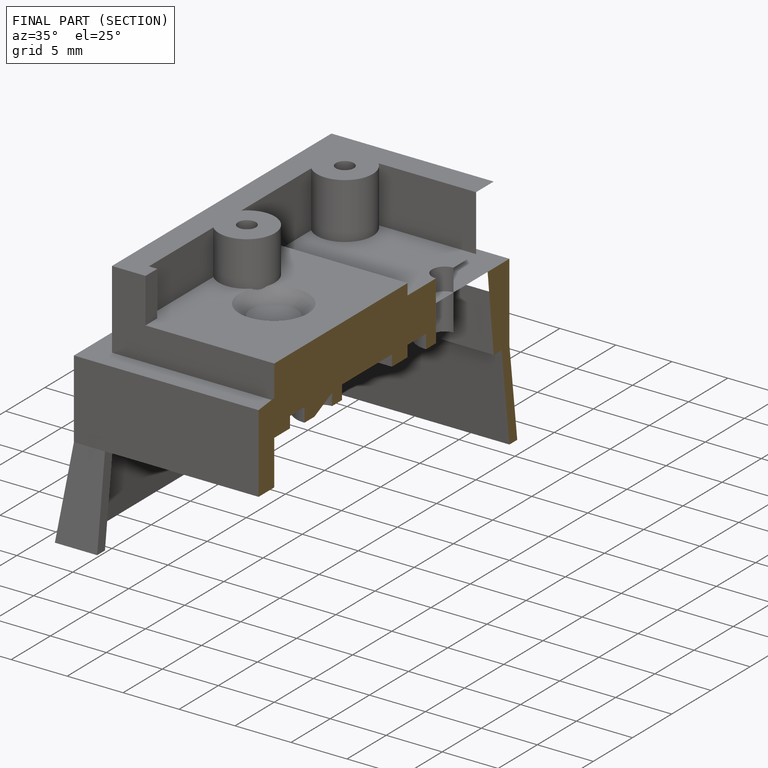
[diagram: finished part — half-section view (interior)]
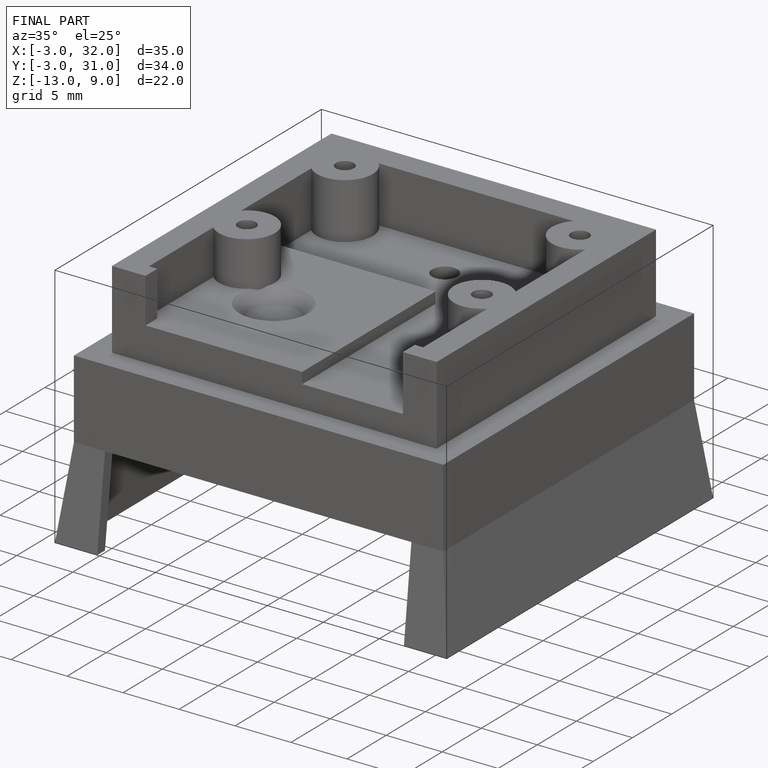
[diagram: finished part — iso view with bounding-box wireframe]
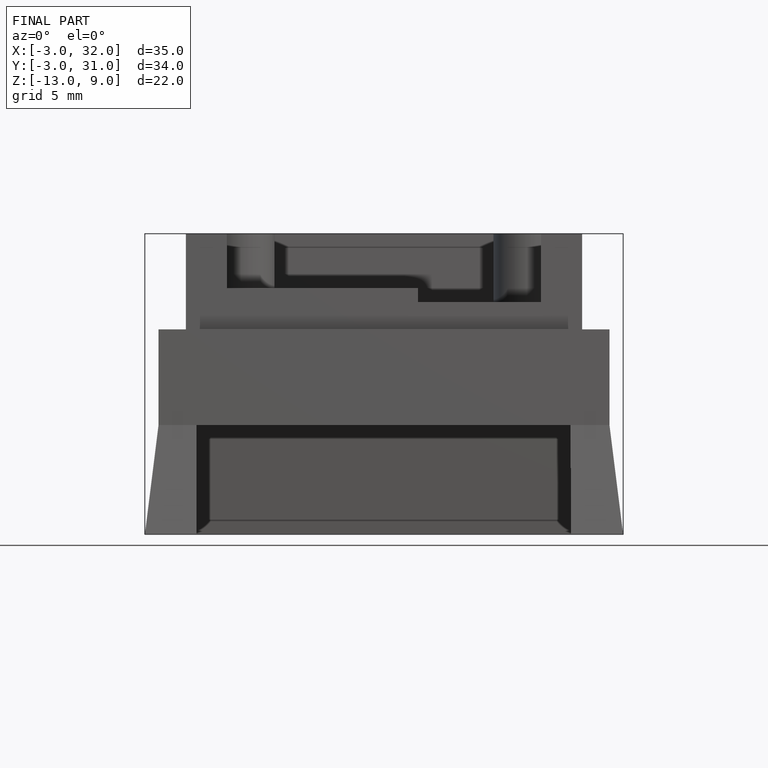
[diagram: finished part — front view with bounding-box wireframe]
